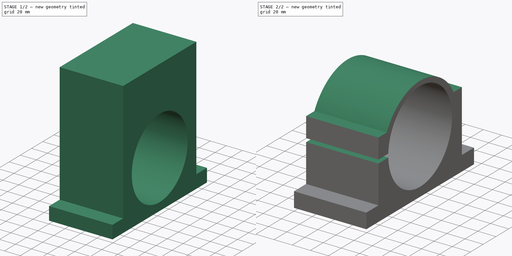
[diagram: build sequence overview — one tinted view per stage of 2, left to right]
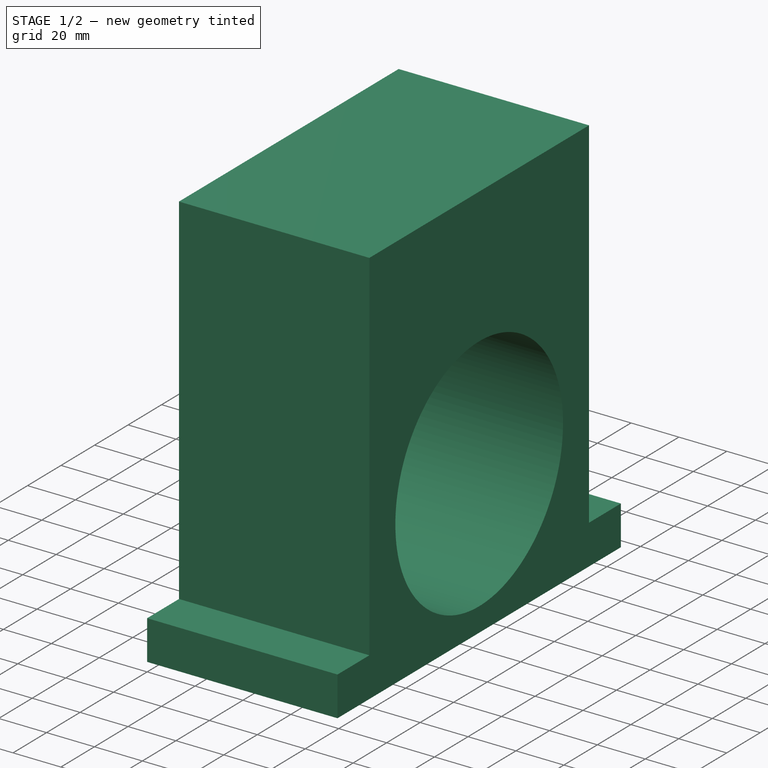
[diagram: stage 1 of 2 — iso view after this stage's code; geometry added in this stage tinted green]
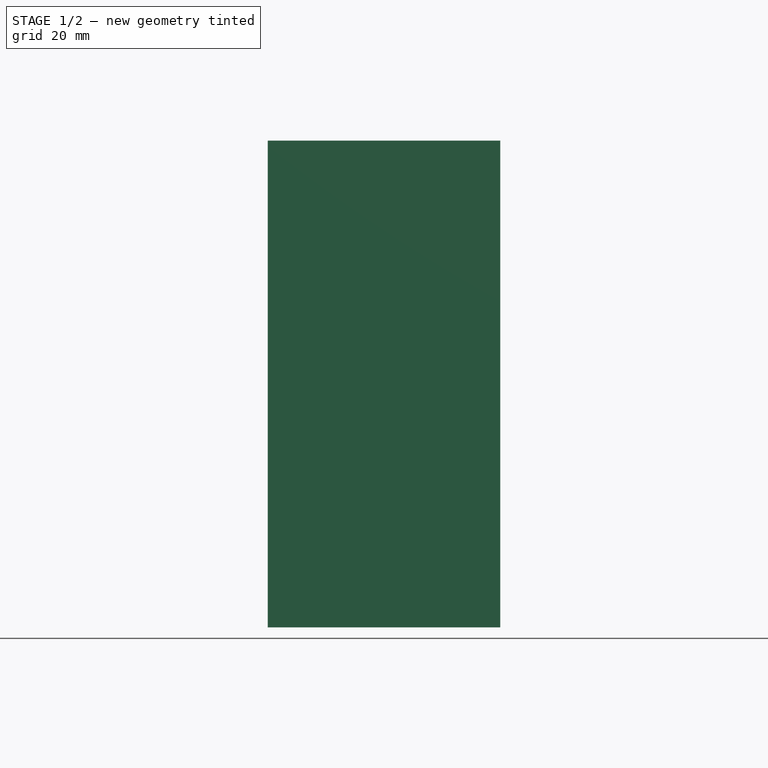
[diagram: stage 1 of 2 — front view after this stage's code; geometry added in this stage tinted green]
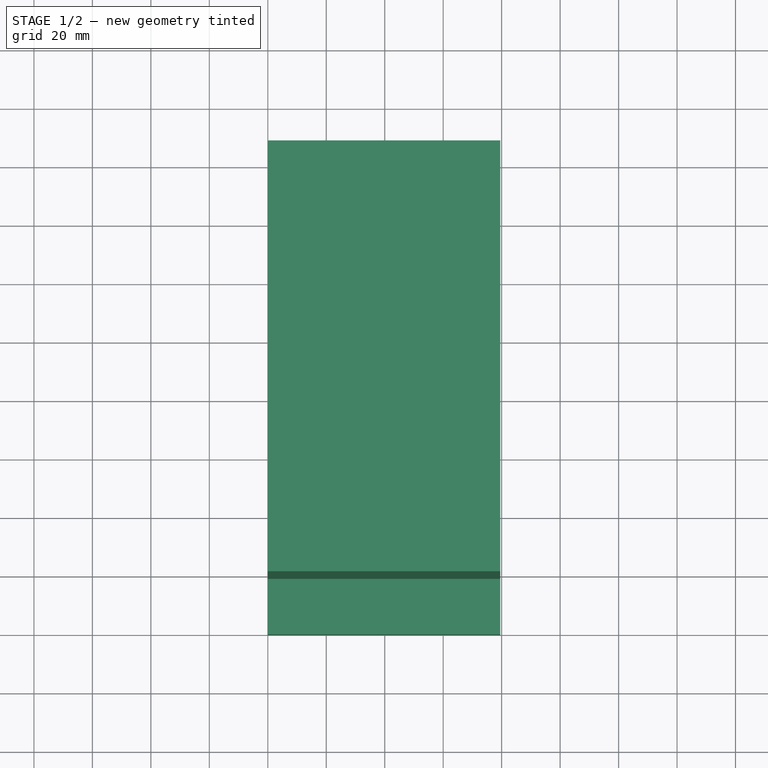
[diagram: stage 1 of 2 — top view after this stage's code; geometry added in this stage tinted green]
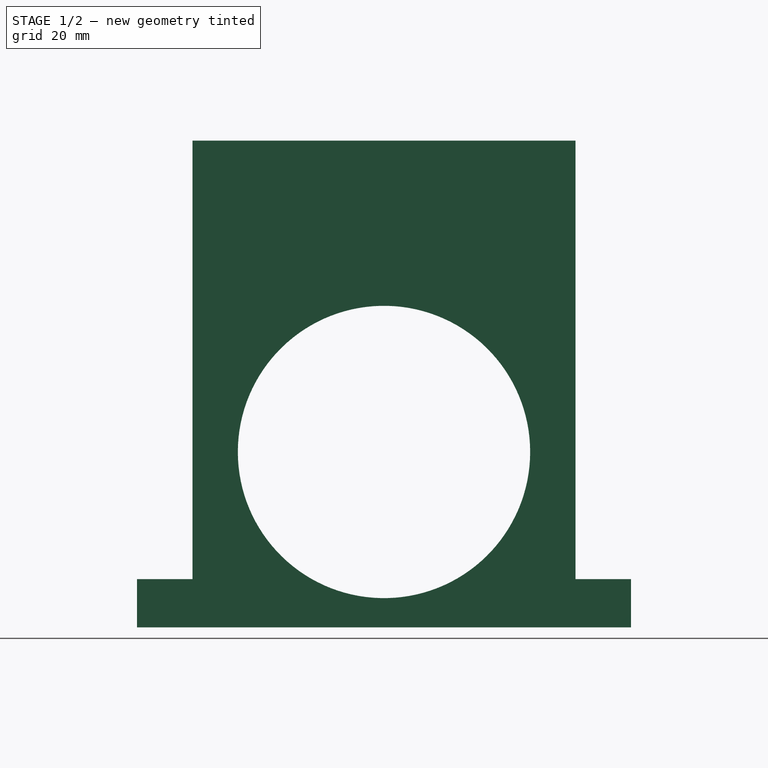
[diagram: stage 1 of 2 — right view after this stage's code; geometry added in this stage tinted green]
FCSTD DOCUMENT  (FreeCAD 1.0R39319 (Git))
Label: spindle-bracket
License: All rights reserved
LicenseURL: https://en.wikipedia.org/wiki/All_rights_reserved
objects: Sketcher::SketchObject×5, PartDesign::Pocket×3, PartDesign::Pad×1, PartDesign::Body×1
note: 23 computed .brp shape members not serialized (recipe doc carries the construction recipe); baked Part::Feature solids carry a one-line shape summary decoded from their .brp

FEATURE [Sketcher::SketchObject] Sketch
  ArcFitTolerance = 1e-06
  AttachmentSupport = -> [YZ_Plane]
  FullyConstrained = true
  MakeInternals = false
  MapMode = 5
  Placement = pos=(0,0,0) rot=(0.57735,0.57735,0.57735;2.0944rad)
  sketch-geometry (9):
    g0: LineSegment StartX=0 StartY=0 StartZ=0 EndX=169 EndY=0 EndZ=0
    g1: LineSegment StartX=169 StartY=0 StartZ=0 EndX=169 EndY=16.5 EndZ=0
    g2: LineSegment StartX=169 StartY=16.5 StartZ=0 EndX=0 EndY=16.5 EndZ=0
    g3: LineSegment StartX=0 StartY=16.5 StartZ=0 EndX=0 EndY=0 EndZ=0
    g4: LineSegment StartX=19 StartY=16.5 StartZ=0 EndX=150 EndY=16.5 EndZ=0
    g5: LineSegment StartX=150 StartY=16.5 StartZ=0 EndX=150 EndY=166.5 EndZ=0
    g6: LineSegment StartX=150 StartY=166.5 StartZ=0 EndX=19 EndY=166.5 EndZ=0
    g7: LineSegment StartX=19 StartY=166.5 StartZ=0 EndX=19 EndY=16.5 EndZ=0
    g8: LineSegment [constr] StartX=84.5 StartY=166.5 StartZ=0 EndX=84.5 EndY=0 EndZ=0
  constraints (25):
    c: Coincident(g0,g1)
    c: Coincident(g1,g2)
    c: Coincident(g2,g3)
    c: Coincident(g3,g0)
    c: Horizontal(g0)
    c: Horizontal(g2)
    c: Vertical(g1)
    c: Vertical(g3)
    c: Coincident(g0,g-1)
    c: Coincident(g4,g5)
    c: Coincident(g5,g6)
    c: Coincident(g6,g7)
    c: Coincident(g7,g4)
    c: Horizontal(g4)
    c: Horizontal(g6)
    c: Vertical(g5)
    c: Vertical(g7)
    c: PointOnObject(g4,g2)
    c: DistanceX(g6,g6) = 131
    c: DistanceX(g0,g0) = 169
    c: Symmetric(g6,g6,g8)
    c: Symmetric(g0,g0,g8)
    c: Vertical(g8)
    c: DistanceY(g7,g7) = 150
    c: Distance(g1,g1) = 16.5
FEATURE [PartDesign::Pad] Pad
  Direction = (1,0,0)
  Length = 79.5
  Length2 = 10
  Placement = pos=(0,0,0) rot=(1,1,1;2.0944rad)
  Profile = -> Sketch
  ReferenceAxis = -> Sketch [N_Axis]
  Refine = true
  Suppressed = false
  Type = 0
FEATURE [Sketcher::SketchObject] Sketch001
  ArcFitTolerance = 1e-06
  AttachmentSupport = -> [Pad]
  ExternalGeometry = -> [Pad]
  FullyConstrained = true
  MakeInternals = false
  MapMode = 5
  Placement = pos=(79.5,0,3.02e-14) rot=(0.57735,0.57735,0.57735;2.0944rad)
  sketch-geometry (3):
    g0: LineSegment [constr] StartX=84.5 StartY=0 StartZ=0 EndX=84.5 EndY=10 EndZ=0
    g1: LineSegment [constr] StartX=84.5 StartY=10 StartZ=0 EndX=84.5 EndY=60 EndZ=0
    g2: Circle CenterX=84.5 CenterY=60 CenterZ=0 NormalX=0 NormalY=0 NormalZ=1 AngleXU=0 Radius=50
  constraints (8):
    c: Distance(g0) = 10
    c: Symmetric(g-3,g-3,g0)
    c: Vertical(g0)
    c: Distance(g1) = 50
    c: Coincident(g1,g0)
    c: Vertical(g1)
    c: Coincident(g2,g1)
    c: PointOnObject(g0,g2)
FEATURE [PartDesign::Pocket] Pocket
  BaseFeature = -> Pad
  Direction = (-1,0,0)
  Length = 5
  Length2 = 5
  Placement = pos=(0,0,0) rot=(1,1,1;2.0944rad)
  Profile = -> Sketch001
  ReferenceAxis = -> Sketch001 [N_Axis]
  Refine = true
  Suppressed = false
  Type = 1
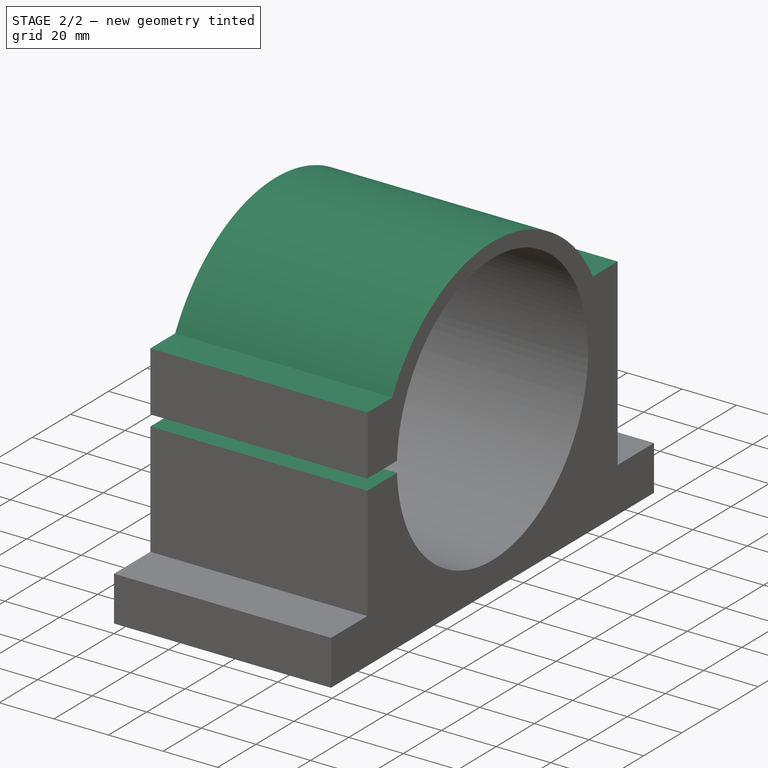
[diagram: stage 2 of 2 — iso view after this stage's code; geometry added in this stage tinted green]
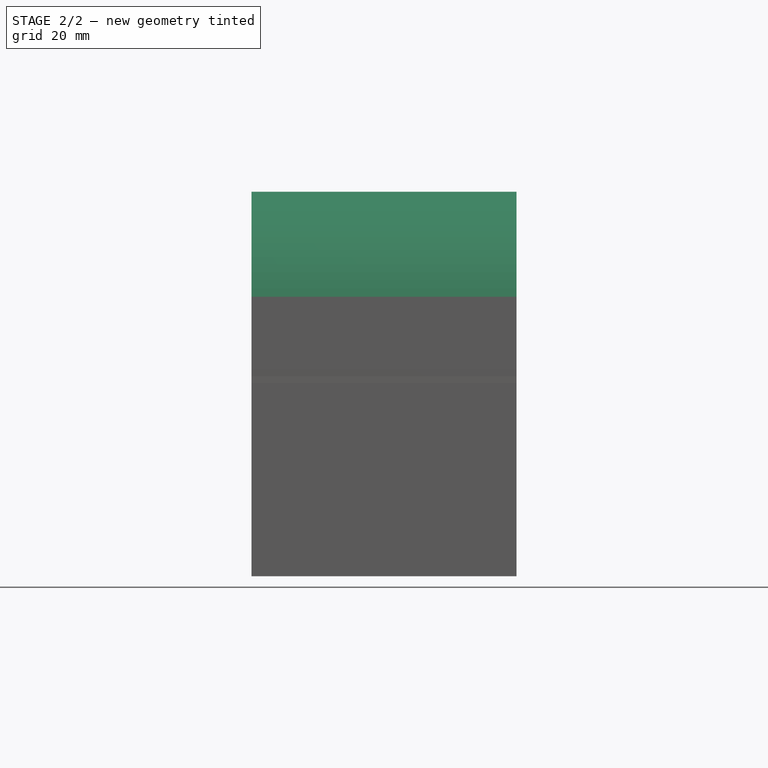
[diagram: stage 2 of 2 — front view after this stage's code; geometry added in this stage tinted green]
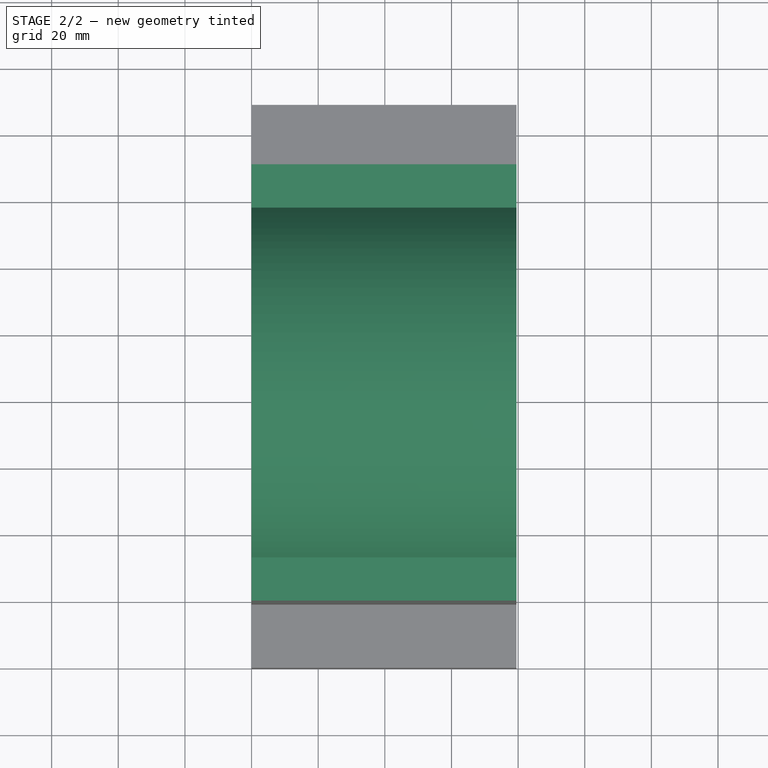
[diagram: stage 2 of 2 — top view after this stage's code; geometry added in this stage tinted green]
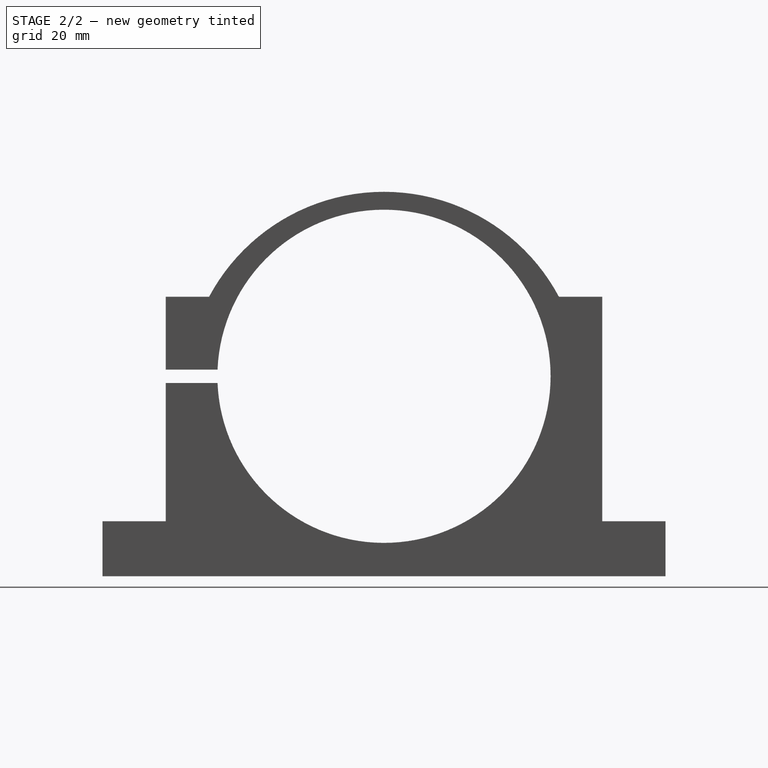
[diagram: stage 2 of 2 — right view after this stage's code; geometry added in this stage tinted green]
FEATURE [Sketcher::SketchObject] Sketch002
  ArcFitTolerance = 1e-06
  AttachmentSupport = -> [Pocket]
  ExternalGeometry = -> [Pocket]
  FullyConstrained = false
  MakeInternals = false
  MapMode = 5
  Placement = pos=(79.5,-1.77e-14,3.9e-14) rot=(0.57735,0.57735,0.57735;2.0944rad)
  sketch-geometry (6):
    g0: LineSegment StartX=19 StartY=83.8707 StartZ=0 EndX=32 EndY=83.8707 EndZ=0
    g1: LineSegment StartX=150 StartY=83.8707 StartZ=0 EndX=137 EndY=83.8707 EndZ=0
    g2: ArcOfCircle CenterX=84.5 CenterY=55.8707 CenterZ=0 NormalX=0 NormalY=0 NormalZ=1 AngleXU=0 Radius=59.5 StartAngle=0.489957 EndAngle=2.65164
    g3: LineSegment StartX=19 StartY=83.8707 StartZ=0 EndX=-15.7378 EndY=179.863 EndZ=0
    g4: LineSegment StartX=-15.7378 StartY=179.863 StartZ=0 EndX=183.644 EndY=183.575 EndZ=0
    g5: LineSegment StartX=183.644 StartY=183.575 StartZ=0 EndX=150 EndY=83.8707 EndZ=0
  constraints (14):
    c: Distance(g0) = 13
    c: Perpendicular(g0,g-3)
    c: PointOnObject(g0,g-3)
    c: Distance(g1) = 13
    c: PointOnObject(g1,g-4)
    c: Horizontal(g1)
    c: PointOnObject(g1,g2)
    c: Coincident(g2,g0)
    c: PointOnObject(g2,g1)
    c: Coincident(g3,g0)
    c: Coincident(g4,g3)
    c: Coincident(g5,g4)
    c: Coincident(g5,g1)
    c: Radius(g2) = 59.5
FEATURE [PartDesign::Pocket] Pocket001
  BaseFeature = -> Pocket
  Direction = (-1,0,0)
  Length = 5
  Length2 = 5
  Placement = pos=(0,0,0) rot=(1,1,1;2.0944rad)
  Profile = -> Sketch002
  ReferenceAxis = -> Sketch002 [N_Axis]
  Refine = true
  Suppressed = false
  Type = 1
FEATURE [Sketcher::SketchObject] Sketch003
  ArcFitTolerance = 1e-06
  AttachmentSupport = -> [Pocket001]
  ExternalGeometry = -> [Pocket001]
  FullyConstrained = true
  MakeInternals = false
  MapMode = 5
  Placement = pos=(79.5,-3.53e-14,4.78e-14) rot=(0.57735,0.57735,0.57735;2.0944rad)
  sketch-geometry (5):
    g0: LineSegment StartX=19 StartY=62 StartZ=0 EndX=19 EndY=58 EndZ=0
    g1: LineSegment StartX=19 StartY=58 StartZ=0 EndX=49 EndY=58 EndZ=0
    g2: LineSegment StartX=49 StartY=58 StartZ=0 EndX=49 EndY=62 EndZ=0
    g3: LineSegment StartX=49 StartY=62 StartZ=0 EndX=19 EndY=62 EndZ=0
    g4: LineSegment [constr] StartX=49 StartY=60 StartZ=0 EndX=84.5 EndY=60 EndZ=0
  constraints (14):
    c: Coincident(g0,g1)
    c: Coincident(g1,g2)
    c: Coincident(g2,g3)
    c: Coincident(g3,g0)
    c: Vertical(g0)
    c: Vertical(g2)
    c: Horizontal(g1)
    c: Horizontal(g3)
    c: Distance(g0,g2) = 30
    c: Distance(g1,g3) = 4
    c: PointOnObject(g0,g-3)
    c: Symmetric(g2,g2,g4)
    c: Coincident(g4,g-4)
    c: Horizontal(g4)
FEATURE [PartDesign::Pocket] Pocket002
  BaseFeature = -> Pocket001
  Direction = (-1,0,0)
  Length = 5
  Length2 = 5
  Placement = pos=(0,0,0) rot=(1,1,1;2.0944rad)
  Profile = -> Sketch003
  ReferenceAxis = -> Sketch003 [N_Axis]
  Refine = true
  Suppressed = false
  Type = 1
FEATURE [Sketcher::SketchObject] Sketch004
  ArcFitTolerance = 1e-06
  AttachmentSupport = -> [Pocket002]
  FullyConstrained = true
  MakeInternals = false
  MapMode = 5
  Placement = pos=(-3.72e-14,3.72e-14,83.8707) rot=(0,0,-1;1.5708rad)
FEATURE [PartDesign::Body] Body
  AllowCompound = false
  Group = -> [Sketch,Pad,Sketch001,Pocket,Sketch002,Pocket001,Sketch003,Pocket002,Sketch004]
  Origin = -> Origin
  Tip = -> Pocket002
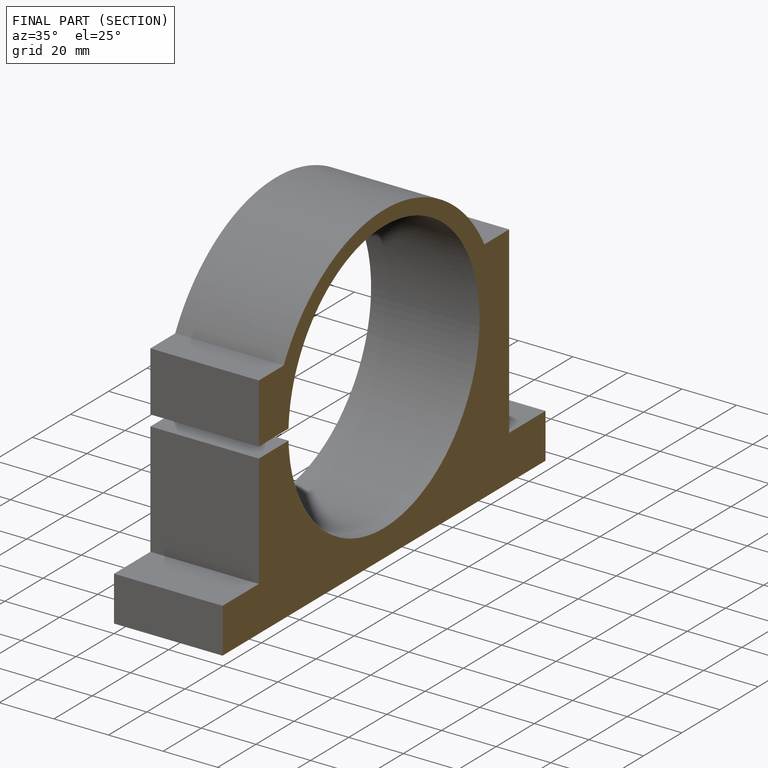
[diagram: finished part — half-section view (interior)]
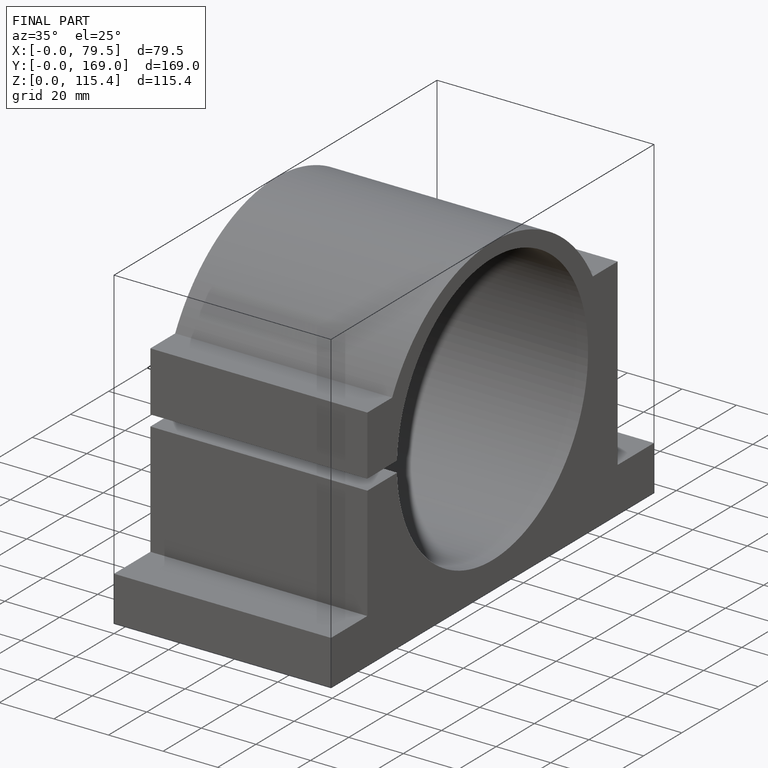
[diagram: finished part — iso view with bounding-box wireframe]
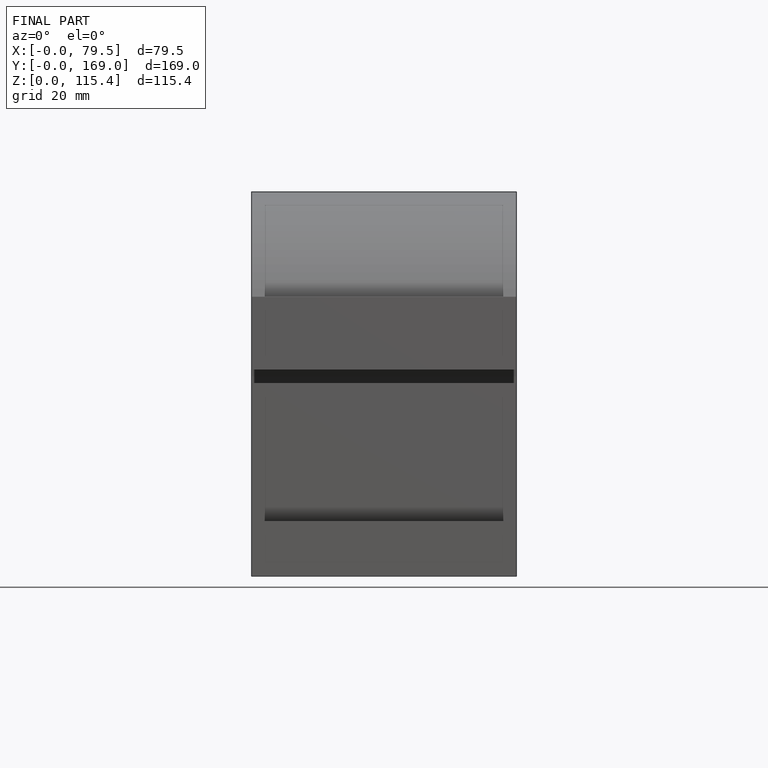
[diagram: finished part — front view with bounding-box wireframe]
